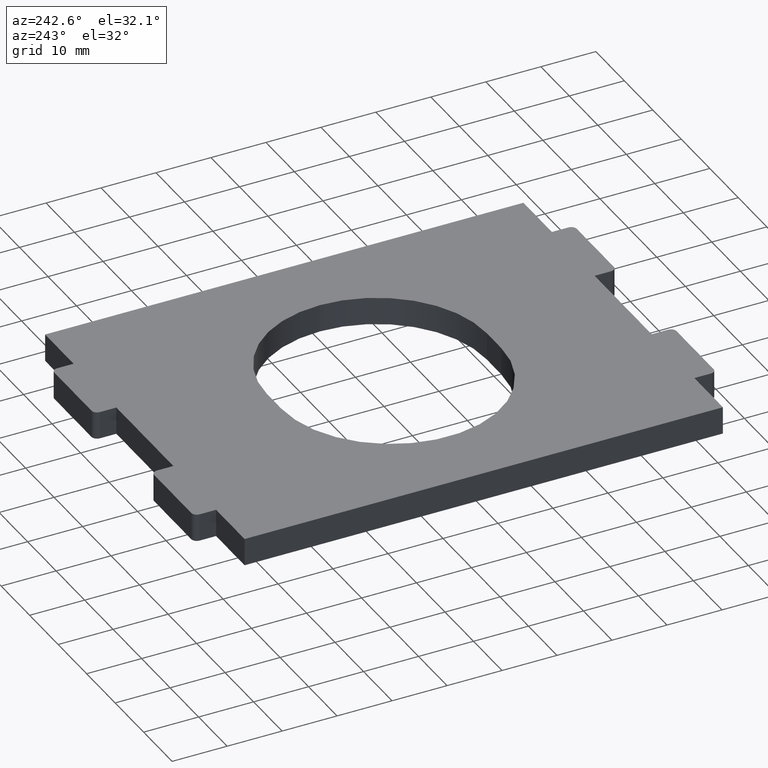
[diagram: clean part render]
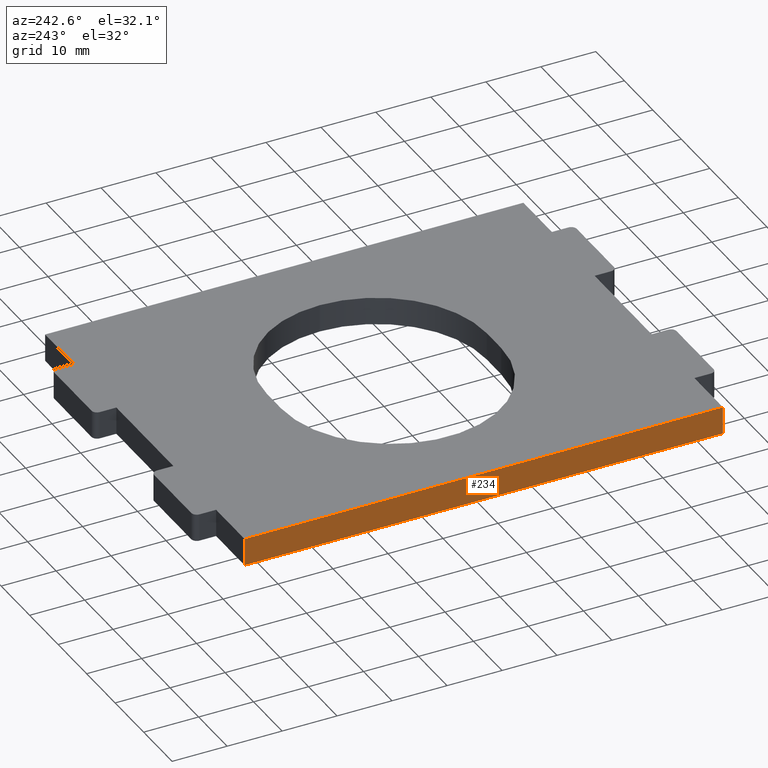
[diagram: same view with one face highlighted and labeled with its STEP entity id]
A machine part, auxiliary view. The second image highlights one B-rep face of the part: STEP entity #234.
In plain terms, the highlighted planar face has unit normal (-1, -0, 0).
Its self-contained STEP definition (entity closure, byte-faithful):
#26 = EDGE_CURVE ( 'NONE', #224, #1124, #155, .T. ) ;
#27 = ORIENTED_EDGE ( 'NONE', *, *, #382, .T. ) ;
#90 = CARTESIAN_POINT ( 'NONE',  ( -34.99999999999999289, -43.50000000000000000, -2.500000000000000000 ) ) ;
#103 = CARTESIAN_POINT ( 'NONE',  ( -34.99999999999999289, -43.50000000000000000, 2.500000000000000000 ) ) ;
#155 = LINE ( 'NONE', #1163, #1102 ) ;
#165 = ORIENTED_EDGE ( 'NONE', *, *, #26, .F. ) ;
#217 = DIRECTION ( 'NONE',  ( 0.000000000000000000, 0.000000000000000000, 1.000000000000000000 ) ) ;
#224 = VERTEX_POINT ( 'NONE', #1101 ) ;
#234 = ADVANCED_FACE ( 'NONE', ( #841 ), #268, .T. ) ;
#268 = PLANE ( 'NONE',  #464 ) ;
#291 = EDGE_CURVE ( 'NONE', #988, #1150, #669, .T. ) ;
#311 = LINE ( 'NONE', #1051, #602 ) ;
#324 = CARTESIAN_POINT ( 'NONE',  ( -35.00000000000000000, 43.50000000000000000, -2.500000000000000000 ) ) ;
#349 = DIRECTION ( 'NONE',  ( 1.595148023886719315E-16, -1.000000000000000000, 0.000000000000000000 ) ) ;
#382 = EDGE_CURVE ( 'NONE', #1150, #1124, #311, .T. ) ;
#406 = DIRECTION ( 'NONE',  ( 0.000000000000000000, 0.000000000000000000, 1.000000000000000000 ) ) ;
#455 = CARTESIAN_POINT ( 'NONE',  ( -35.00000000000000000, 43.50000000000000000, -2.500000000000000000 ) ) ;
#464 = AXIS2_PLACEMENT_3D ( 'NONE', #940, #1202, #1120 ) ;
#511 = ORIENTED_EDGE ( 'NONE', *, *, #845, .F. ) ;
#602 = VECTOR ( 'NONE', #217, 1000.000000000000000 ) ;
#624 = LINE ( 'NONE', #324, #999 ) ;
#649 = ORIENTED_EDGE ( 'NONE', *, *, #291, .T. ) ;
#669 = LINE ( 'NONE', #1037, #953 ) ;
#841 = FACE_OUTER_BOUND ( 'NONE', #887, .T. ) ;
#845 = EDGE_CURVE ( 'NONE', #988, #224, #624, .T. ) ;
#887 = EDGE_LOOP ( 'NONE', ( #165, #511, #649, #27 ) ) ;
#940 = CARTESIAN_POINT ( 'NONE',  ( -35.00000000000000000, 43.50000000000000000, -2.500000000000000000 ) ) ;
#953 = VECTOR ( 'NONE', #1136, 1000.000000000000000 ) ;
#988 = VERTEX_POINT ( 'NONE', #455 ) ;
#999 = VECTOR ( 'NONE', #406, 1000.000000000000000 ) ;
#1037 = CARTESIAN_POINT ( 'NONE',  ( -35.00000000000000000, 43.50000000000000000, -2.500000000000000000 ) ) ;
#1051 = CARTESIAN_POINT ( 'NONE',  ( -34.99999999999999289, -43.50000000000000000, -2.500000000000000000 ) ) ;
#1101 = CARTESIAN_POINT ( 'NONE',  ( -35.00000000000000000, 43.50000000000000000, 2.500000000000000000 ) ) ;
#1102 = VECTOR ( 'NONE', #349, 1000.000000000000000 ) ;
#1120 = DIRECTION ( 'NONE',  ( 1.595148023886719315E-16, -1.000000000000000000, 0.000000000000000000 ) ) ;
#1124 = VERTEX_POINT ( 'NONE', #103 ) ;
#1136 = DIRECTION ( 'NONE',  ( 1.595148023886719315E-16, -1.000000000000000000, 0.000000000000000000 ) ) ;
#1150 = VERTEX_POINT ( 'NONE', #90 ) ;
#1163 = CARTESIAN_POINT ( 'NONE',  ( -35.00000000000000000, 43.50000000000000000, 2.500000000000000000 ) ) ;
#1202 = DIRECTION ( 'NONE',  ( -1.000000000000000000, -1.595148023886719315E-16, 0.000000000000000000 ) ) ;